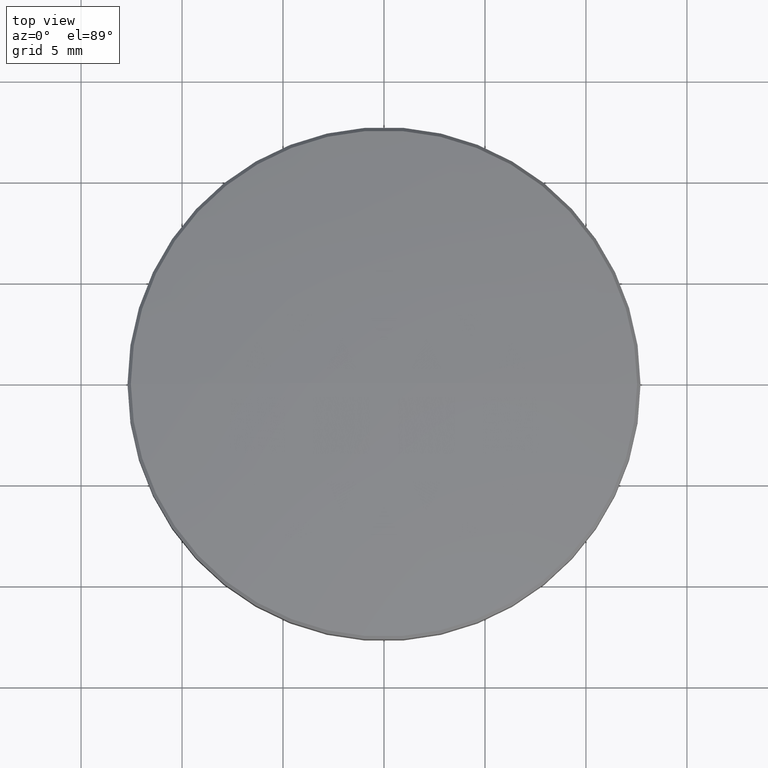
[diagram: clean part render]
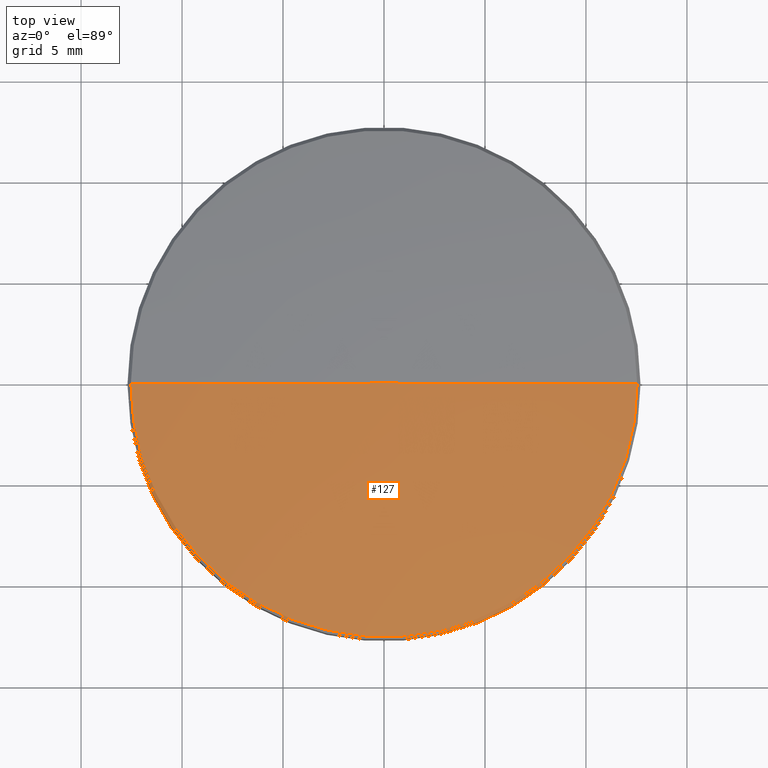
[diagram: same view with one face highlighted and labeled with its STEP entity id]
A machine part, top view. The second image highlights one B-rep face of the part: STEP entity #127.
In plain terms, the highlighted spherical surface has radius 71.66 mm.
Its self-contained STEP definition (entity closure, byte-faithful):
#9 = CIRCLE ( 'NONE', #232, 71.65999999999999659 ) ;
#11 = DIRECTION ( 'NONE',  ( 0.000000000000000000, -1.000000000000000000, 0.000000000000000000 ) ) ;
#12 = FACE_OUTER_BOUND ( 'NONE', #38, .T. ) ;
#14 = CARTESIAN_POINT ( 'NONE',  ( 0.000000000000000000, 0.000000000000000000, -66.65999999999999659 ) ) ;
#29 = SPHERICAL_SURFACE ( 'NONE', #210, 71.65999999999999659 ) ;
#33 = CARTESIAN_POINT ( 'NONE',  ( 0.000000000000000000, 0.000000000000000000, -66.65999999999999659 ) ) ;
#38 = EDGE_LOOP ( 'NONE', ( #153, #63, #230 ) ) ;
#48 = DIRECTION ( 'NONE',  ( -1.224646799147353207E-16, 1.000000000000000000, 1.499759782661856513E-32 ) ) ;
#63 = ORIENTED_EDGE ( 'NONE', *, *, #166, .T. ) ;
#83 = VERTEX_POINT ( 'NONE', #92 ) ;
#90 = DIRECTION ( 'NONE',  ( 0.000000000000000000, 1.000000000000000000, -0.000000000000000000 ) ) ;
#92 = CARTESIAN_POINT ( 'NONE',  ( 12.53498460677301729, 1.535092877604591061E-15, 3.895154035038178364 ) ) ;
#93 = EDGE_CURVE ( 'NONE', #135, #83, #9, .T. ) ;
#94 = CARTESIAN_POINT ( 'NONE',  ( -12.53498460677301729, 0.000000000000000000, 3.895154035038178364 ) ) ;
#95 = DIRECTION ( 'NONE',  ( 0.000000000000000000, 0.000000000000000000, -1.000000000000000000 ) ) ;
#111 = AXIS2_PLACEMENT_3D ( 'NONE', #14, #11, #95 ) ;
#127 = ADVANCED_FACE ( 'NONE', ( #12 ), #29, .T. ) ;
#130 = CIRCLE ( 'NONE', #150, 12.53498460677301907 ) ;
#135 = VERTEX_POINT ( 'NONE', #197 ) ;
#150 = AXIS2_PLACEMENT_3D ( 'NONE', #194, #164, #256 ) ;
#153 = ORIENTED_EDGE ( 'NONE', *, *, #93, .F. ) ;
#164 = DIRECTION ( 'NONE',  ( -0.000000000000000000, -0.000000000000000000, 1.000000000000000000 ) ) ;
#166 = EDGE_CURVE ( 'NONE', #135, #170, #222, .T. ) ;
#170 = VERTEX_POINT ( 'NONE', #94 ) ;
#175 = EDGE_CURVE ( 'NONE', #170, #83, #130, .T. ) ;
#178 = DIRECTION ( 'NONE',  ( -1.000000000000000000, 0.000000000000000000, 1.936615658360934486E-16 ) ) ;
#191 = CARTESIAN_POINT ( 'NONE',  ( 0.000000000000000000, 0.000000000000000000, -66.65999999999999659 ) ) ;
#194 = CARTESIAN_POINT ( 'NONE',  ( 0.000000000000000000, 0.000000000000000000, 3.895154035038178364 ) ) ;
#197 = CARTESIAN_POINT ( 'NONE',  ( 4.387909481344959759E-15, 0.000000000000000000, 5.000000000000004441 ) ) ;
#210 = AXIS2_PLACEMENT_3D ( 'NONE', #33, #90, #178 ) ;
#222 = CIRCLE ( 'NONE', #111, 71.65999999999999659 ) ;
#230 = ORIENTED_EDGE ( 'NONE', *, *, #175, .T. ) ;
#232 = AXIS2_PLACEMENT_3D ( 'NONE', #191, #48, #258 ) ;
#256 = DIRECTION ( 'NONE',  ( -1.000000000000000000, 0.000000000000000000, 0.000000000000000000 ) ) ;
#258 = DIRECTION ( 'NONE',  ( -1.000000000000000000, -1.224646799147353454E-16, 0.000000000000000000 ) ) ;